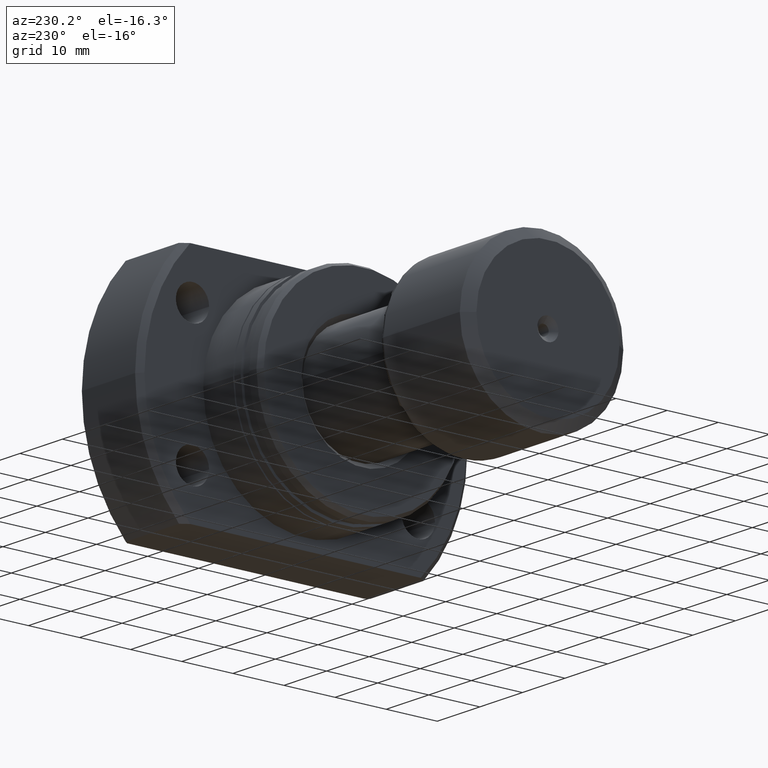
[diagram: clean part render]
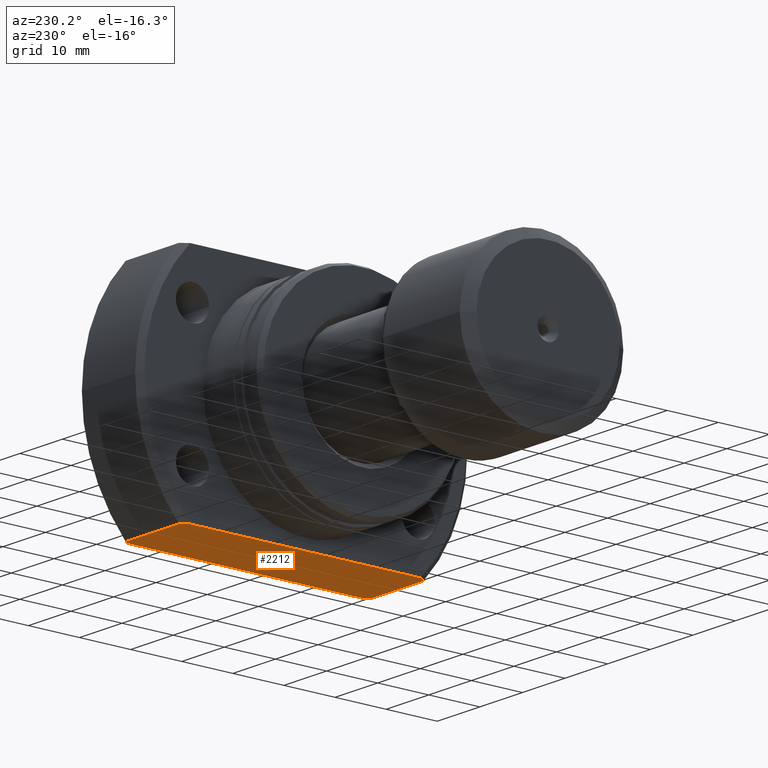
[diagram: same view with one face highlighted and labeled with its STEP entity id]
A machine part, auxiliary view. The second image highlights one B-rep face of the part: STEP entity #2212.
In plain terms, the highlighted planar face has unit normal (0, 0, 1).
Its self-contained STEP definition (entity closure, byte-faithful):
#62 = LINE ( 'NONE', #812, #2437 ) ;
#77 = PLANE ( 'NONE',  #3027 ) ;
#151 = VERTEX_POINT ( 'NONE', #190 ) ;
#162 = DIRECTION ( 'NONE',  ( 1.000000000000000000, -2.886466111666351885E-14, -0.000000000000000000 ) ) ;
#190 = CARTESIAN_POINT ( 'NONE',  ( 14.49999999999999289, 23.92174742781164198, -22.00000000000000000 ) ) ;
#234 = CARTESIAN_POINT ( 'NONE',  ( 14.49999999999999289, -23.92174742781091368, -22.00000000000000355 ) ) ;
#237 = CARTESIAN_POINT ( 'NONE',  ( 27.00000000000007105, 23.92174742781127961, -22.00000000000000000 ) ) ;
#239 = ORIENTED_EDGE ( 'NONE', *, *, #2602, .F. ) ;
#262 = EDGE_CURVE ( 'NONE', #3101, #3010, #62, .T. ) ;
#263 = CARTESIAN_POINT ( 'NONE',  ( 13.83023180395318619, 23.00581462409453692, -22.00000000000000355 ) ) ;
#446 = LINE ( 'NONE', #2658, #843 ) ;
#468 = ORIENTED_EDGE ( 'NONE', *, *, #262, .F. ) ;
#508 = CARTESIAN_POINT ( 'NONE',  ( 14.49999999999999289, 23.92174742781164198, -22.00000000000000000 ) ) ;
#530 = CARTESIAN_POINT ( 'NONE',  ( 27.16744843440999446, 23.69425258719626726, -22.00000000000000355 ) ) ;
#673 = ORIENTED_EDGE ( 'NONE', *, *, #1321, .F. ) ;
#677 = VERTEX_POINT ( 'NONE', #2776 ) ;
#721 = ORIENTED_EDGE ( 'NONE', *, *, #1398, .F. ) ;
#726 = CARTESIAN_POINT ( 'NONE',  ( 14.16344437228347886, -23.46450416271139261, -22.00000000000000355 ) ) ;
#759 = VECTOR ( 'NONE', #162, 1000.000000000000000 ) ;
#812 = CARTESIAN_POINT ( 'NONE',  ( 27.50000000000000355, -32.00000000000000000, -22.00000000000000355 ) ) ;
#843 = VECTOR ( 'NONE', #2637, 1000.000000000000000 ) ;
#970 = EDGE_CURVE ( 'NONE', #3010, #2786, #3160, .T. ) ;
#1041 = CARTESIAN_POINT ( 'NONE',  ( 14.49999999999999289, -23.92174742781091368, -22.00000000000000355 ) ) ;
#1067 = DIRECTION ( 'NONE',  ( 0.000000000000000000, 0.000000000000000000, 1.000000000000000000 ) ) ;
#1171 = CARTESIAN_POINT ( 'NONE',  ( 27.50000000000000355, 23.23790007724450035, -22.00000000000000355 ) ) ;
#1210 = VERTEX_POINT ( 'NONE', #2087 ) ;
#1235 = VERTEX_POINT ( 'NONE', #1041 ) ;
#1321 = EDGE_CURVE ( 'NONE', #1210, #3101, #1768, .T. ) ;
#1353 = CARTESIAN_POINT ( 'NONE',  ( 27.50000000000000355, -23.23790007724450035, -22.00000000000000355 ) ) ;
#1360 = EDGE_CURVE ( 'NONE', #151, #2786, #1399, .T. ) ;
#1398 = EDGE_CURVE ( 'NONE', #1970, #1235, #3058, .T. ) ;
#1399 = LINE ( 'NONE', #2891, #3136 ) ;
#1401 = CARTESIAN_POINT ( 'NONE',  ( 13.50000000000001421, -22.54440063519093940, -22.00000000000000355 ) ) ;
#1482 = CARTESIAN_POINT ( 'NONE',  ( 14.16368991444089964, 23.46483775540317751, -22.00000000000000355 ) ) ;
#1593 = CARTESIAN_POINT ( 'NONE',  ( 27.16738888422669262, -23.69433349186108018, -22.00000000000000355 ) ) ;
#1601 = CARTESIAN_POINT ( 'NONE',  ( -2.428612866367529932E-13, 23.92174742781206831, -22.00000000000000355 ) ) ;
#1606 = ORIENTED_EDGE ( 'NONE', *, *, #970, .F. ) ;
#1610 = B_SPLINE_CURVE_WITH_KNOTS ( 'NONE', 3,
 ( #508, #1482, #263, #2471 ),
 .UNSPECIFIED., .F., .F.,
 ( 4, 4 ),
 ( 0.03779752499755564821, 0.03950166028446427946 ),
 .UNSPECIFIED. ) ;
#1628 = DIRECTION ( 'NONE',  ( 1.000000000000000000, -2.886466111666351885E-14, -0.000000000000000000 ) ) ;
#1656 = CARTESIAN_POINT ( 'NONE',  ( 27.00000000000007105, -23.92174742781127605, -22.00000000000000355 ) ) ;
#1755 = ORIENTED_EDGE ( 'NONE', *, *, #3038, .F. ) ;
#1768 = B_SPLINE_CURVE_WITH_KNOTS ( 'NONE', 3,
 ( #1656, #1593, #2361, #1353 ),
 .UNSPECIFIED., .F., .F.,
 ( 4, 4 ),
 ( 0.03779112510166890426, 0.03863931077161743971 ),
 .UNSPECIFIED. ) ;
#1788 = DIRECTION ( 'NONE',  ( -1.335978326342566810E-17, 1.000000000000000000, -0.000000000000000000 ) ) ;
#1840 = ORIENTED_EDGE ( 'NONE', *, *, #3137, .F. ) ;
#1970 = VERTEX_POINT ( 'NONE', #3135 ) ;
#2087 = CARTESIAN_POINT ( 'NONE',  ( 27.00000000000007105, -23.92174742781127605, -22.00000000000000355 ) ) ;
#2160 = EDGE_LOOP ( 'NONE', ( #2963, #1606, #468, #673, #1755, #721, #239, #1840 ) ) ;
#2178 = LINE ( 'NONE', #3185, #759 ) ;
#2212 = ADVANCED_FACE ( 'NONE', ( #2578 ), #77, .F. ) ;
#2361 = CARTESIAN_POINT ( 'NONE',  ( 27.33407032320117125, -23.46639532164750364, -22.00000000000000355 ) ) ;
#2437 = VECTOR ( 'NONE', #1788, 1000.000000000000000 ) ;
#2471 = CARTESIAN_POINT ( 'NONE',  ( 13.50000000000000178, 22.54440063519089676, -22.00000000000000355 ) ) ;
#2578 = FACE_OUTER_BOUND ( 'NONE', #2160, .T. ) ;
#2596 = DIRECTION ( 'NONE',  ( 1.000000000000000000, 0.000000000000000000, -0.000000000000000000 ) ) ;
#2602 = EDGE_CURVE ( 'NONE', #677, #1970, #446, .T. ) ;
#2637 = DIRECTION ( 'NONE',  ( 1.335978326342566810E-17, -1.000000000000000000, 0.000000000000000000 ) ) ;
#2658 = CARTESIAN_POINT ( 'NONE',  ( 13.50000000000000178, -19.99999999999999645, -22.00000000000000355 ) ) ;
#2674 = CARTESIAN_POINT ( 'NONE',  ( 27.50000000000000355, 23.23790007724450035, -22.00000000000000355 ) ) ;
#2705 = CARTESIAN_POINT ( 'NONE',  ( 27.33413051841648311, 23.46631242917946025, -22.00000000000000355 ) ) ;
#2733 = CARTESIAN_POINT ( 'NONE',  ( 27.50000000000000355, -23.23790007724450035, -22.00000000000000355 ) ) ;
#2737 = CARTESIAN_POINT ( 'NONE',  ( 27.00000000000007105, 23.92174742781127961, -22.00000000000000000 ) ) ;
#2776 = CARTESIAN_POINT ( 'NONE',  ( 13.50000000000000178, 22.54440063519089676, -22.00000000000000355 ) ) ;
#2786 = VERTEX_POINT ( 'NONE', #2737 ) ;
#2891 = CARTESIAN_POINT ( 'NONE',  ( -2.428612866367529932E-13, 23.92174742781206120, -22.00000000000000000 ) ) ;
#2945 = CARTESIAN_POINT ( 'NONE',  ( 13.82998096711740033, -23.00546414414808538, -22.00000000000000355 ) ) ;
#2963 = ORIENTED_EDGE ( 'NONE', *, *, #1360, .T. ) ;
#3010 = VERTEX_POINT ( 'NONE', #1171 ) ;
#3027 = AXIS2_PLACEMENT_3D ( 'NONE', #1601, #1067, #2596 ) ;
#3038 = EDGE_CURVE ( 'NONE', #1235, #1210, #2178, .T. ) ;
#3058 = B_SPLINE_CURVE_WITH_KNOTS ( 'NONE', 3,
 ( #1401, #2945, #726, #234 ),
 .UNSPECIFIED., .F., .F.,
 ( 4, 4 ),
 ( 0.08934887722955493772, 0.09106053602301761307 ),
 .UNSPECIFIED. ) ;
#3101 = VERTEX_POINT ( 'NONE', #2733 ) ;
#3135 = CARTESIAN_POINT ( 'NONE',  ( 13.50000000000001421, -22.54440063519093940, -22.00000000000000355 ) ) ;
#3136 = VECTOR ( 'NONE', #1628, 1000.000000000000000 ) ;
#3137 = EDGE_CURVE ( 'NONE', #151, #677, #1610, .T. ) ;
#3160 = B_SPLINE_CURVE_WITH_KNOTS ( 'NONE', 3,
 ( #2674, #2705, #530, #237 ),
 .UNSPECIFIED., .F., .F.,
 ( 4, 4 ),
 ( 0.09020251661949907351, 0.09105413011805363332 ),
 .UNSPECIFIED. ) ;
#3185 = CARTESIAN_POINT ( 'NONE',  ( -1.623701173514291440E-12, -23.92174742781049446, -22.00000000000000355 ) ) ;